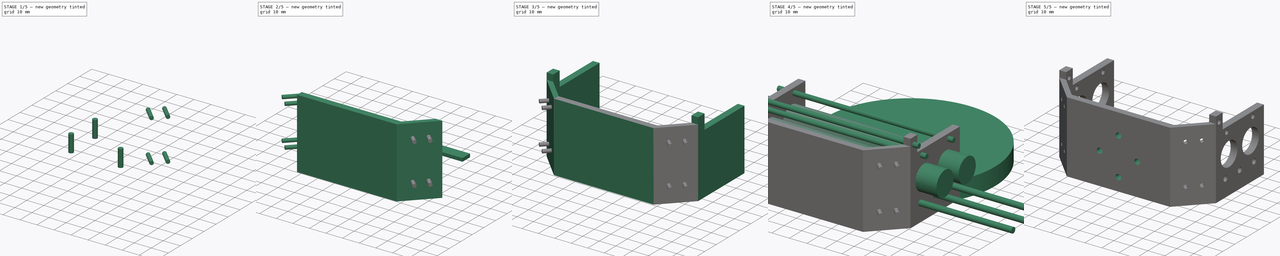
[diagram: build sequence overview — one tinted view per stage of 5, left to right]
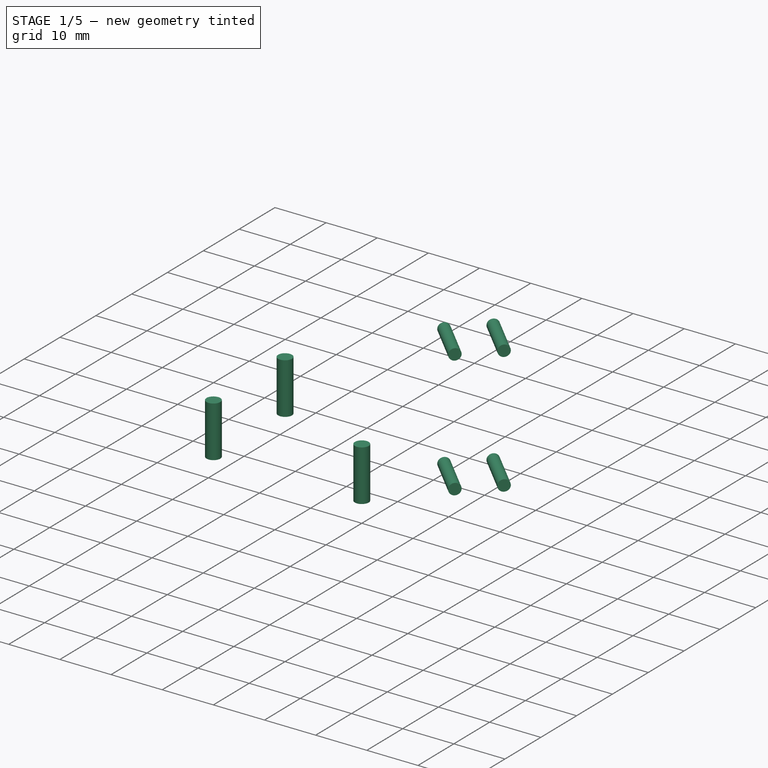
[diagram: stage 1 of 5 — iso view after this stage's code; geometry added in this stage tinted green]
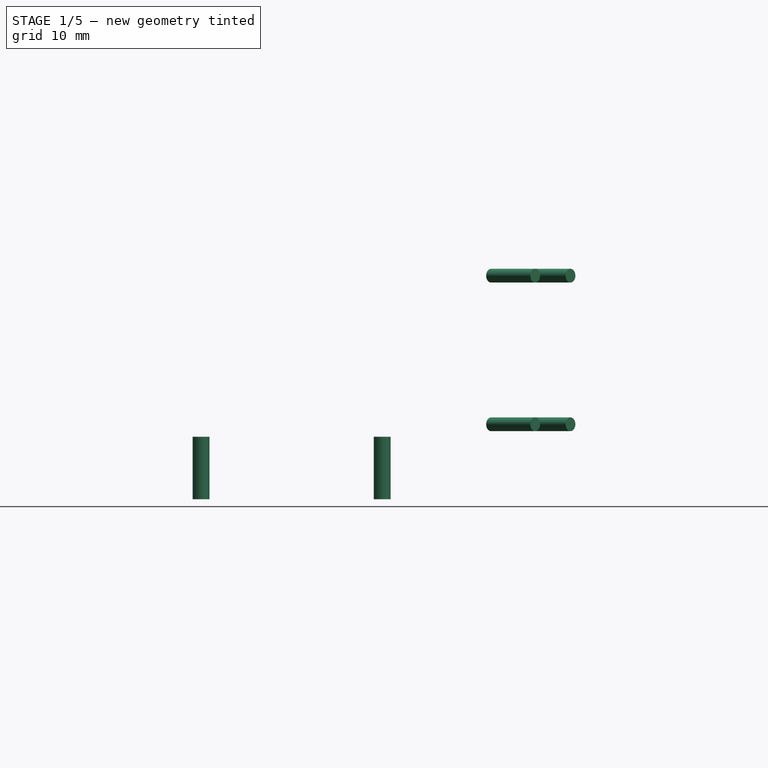
[diagram: stage 1 of 5 — front view after this stage's code; geometry added in this stage tinted green]
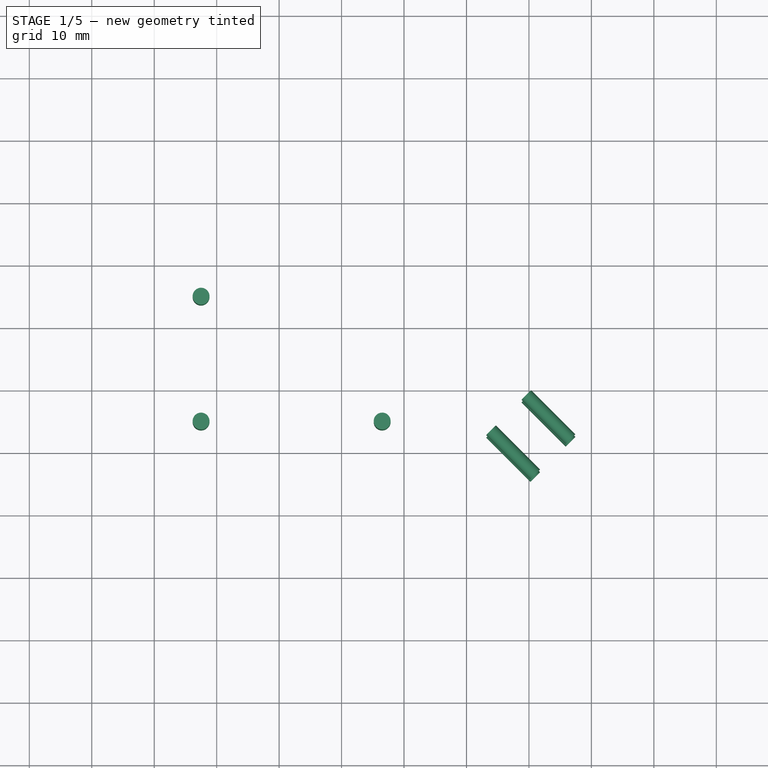
[diagram: stage 1 of 5 — top view after this stage's code; geometry added in this stage tinted green]
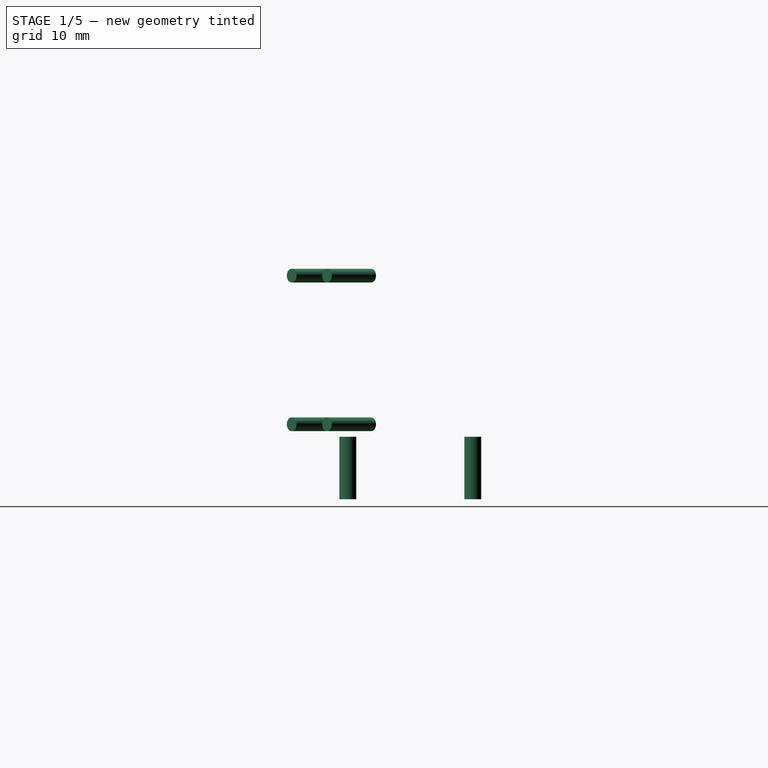
[diagram: stage 1 of 5 — right view after this stage's code; geometry added in this stage tinted green]
FCSTD DOCUMENT  (FreeCAD 0.16R6705 (Git))
Label: back_plate_shoulder
License: All rights reserved
LicenseURL: http://en.wikipedia.org/wiki/All_rights_reserved
objects: Part::Cylinder×21, Part::MultiFuse×11, Part::Box×8, Part::Cut×4, Part::Mirroring×3, Sketcher::SketchObject×2, Part::Extrusion×2
note: 51 computed .brp shape members not serialized (recipe doc carries the construction recipe); baked Part::Feature solids carry a one-line shape summary decoded from their .brp

FEATURE [Part::Cylinder] Cylinder020
  Angle = 360
  Height = 10
  Placement = pos=(56.5,-5,-2) rot=(0,0,1;0rad)
  Radius = 1.35
FEATURE [Part::Cylinder] Cylinder021
  Angle = 360
  Height = 10
  Placement = pos=(56.5,15,-2) rot=(0,0,1;0rad)
  Radius = 1.35
FEATURE [Part::Cylinder] Cylinder022
  Angle = 360
  Height = 10
  Placement = pos=(56.5,-5,-2) rot=(0,0,1;0rad)
  Radius = 1.35
FEATURE [Part::MultiFuse] Fusion015
  Placement = pos=(-29,0,0) rot=(0,0,1;0rad)
  Shapes = -> [Cylinder021,Cylinder022]
FEATURE [Part::Cylinder] Cylinder023
  Angle = 360
  Height = 10
  Placement = pos=(0,0,0) rot=(0,1,0;1.5708rad)
  Radius = 1.1
FEATURE [Part::Cylinder] Cylinder024
  Angle = 360
  Height = 10
  Placement = pos=(0,8,0) rot=(0,1,0;1.5708rad)
  Radius = 1.1
FEATURE [Part::Cylinder] Cylinder025
  Angle = 360
  Height = 10
  Placement = pos=(0,0,23.8) rot=(0,1,0;1.5708rad)
  Radius = 1.1
FEATURE [Part::Cylinder] Cylinder026
  Angle = 360
  Height = 10
  Placement = pos=(0,8,23.8) rot=(0,1,0;1.5708rad)
  Radius = 1.1
FEATURE [Part::MultiFuse] Fusion016
  Placement = pos=(3,-14,10) rot=(0,0,1;0.785398rad)
  Shapes = -> [Cylinder026,Cylinder023,Cylinder025,Cylinder024]
FEATURE [Part::Mirroring] Part__Mirroring002  label="Fusion016 (Mirror #3)"
  Base = (42,0,0)
  Normal = (1,0,0)
  Source = -> Fusion016
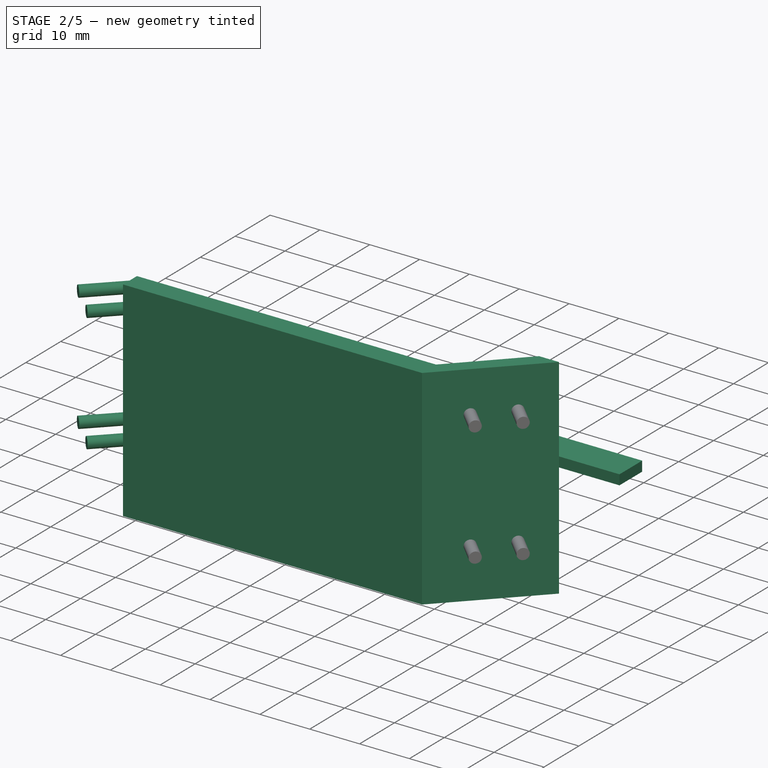
[diagram: stage 2 of 5 — iso view after this stage's code; geometry added in this stage tinted green]
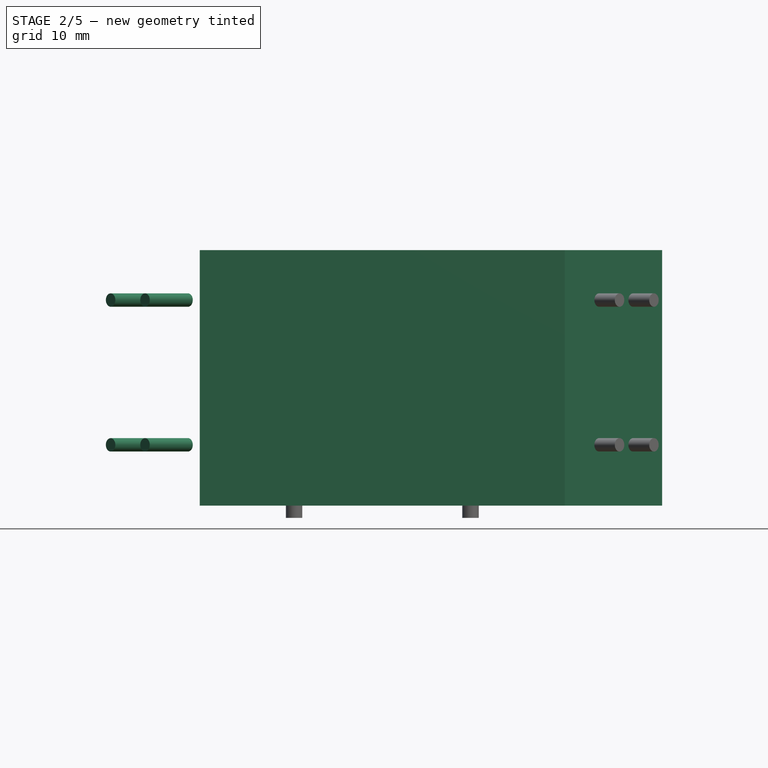
[diagram: stage 2 of 5 — front view after this stage's code; geometry added in this stage tinted green]
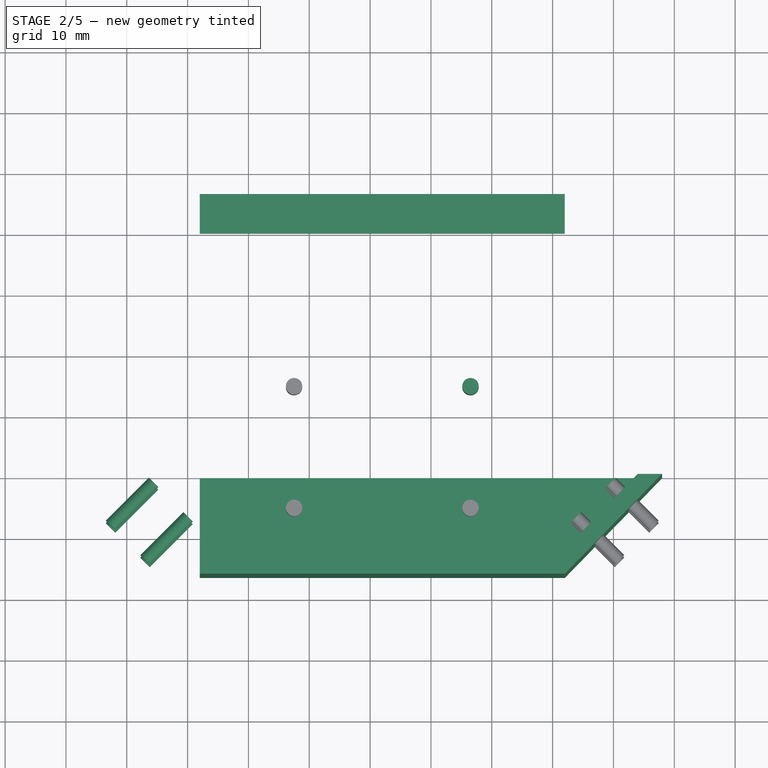
[diagram: stage 2 of 5 — top view after this stage's code; geometry added in this stage tinted green]
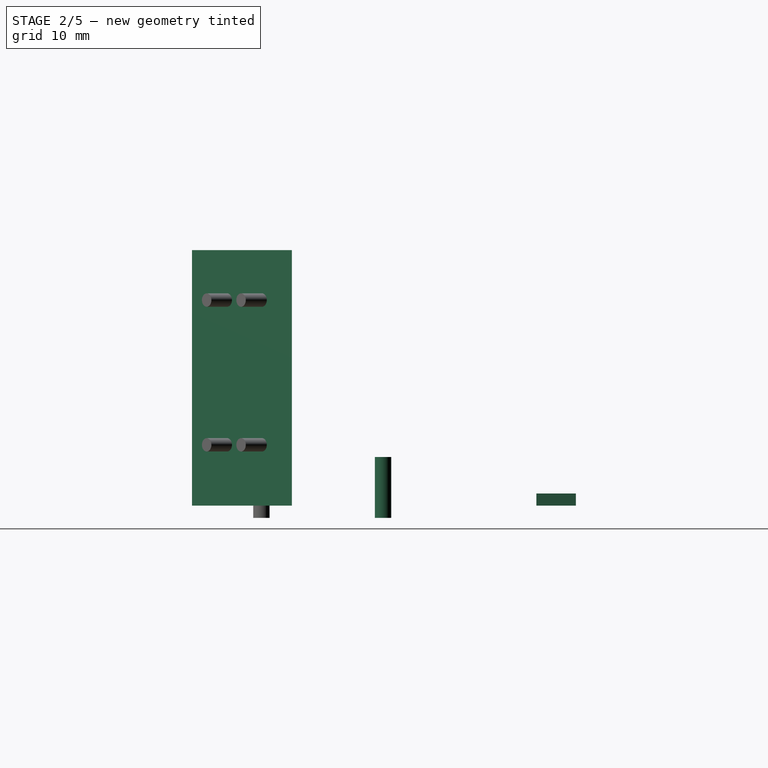
[diagram: stage 2 of 5 — right view after this stage's code; geometry added in this stage tinted green]
FEATURE [Part::Box] Box003  label="Cube003"
  Height = 2
  Length = 60
  Placement = pos=(12,-16.4,0) rot=(0,0,1;0rad)
  Width = 16.4
FEATURE [Part::Box] Box004  label="Cube004"
  Height = 42
  Length = 60
  Placement = pos=(12,-16.4,0) rot=(0,0,1;0rad)
  Width = 4
FEATURE [Sketcher::SketchObject] Sketch
  sketch-geometry (6):
    g0: GeomPoint [constr] X=12 Y=0 Z=0
    g1: GeomPoint [constr] X=12 Y=-16.4 Z=0
    g2: GeomPoint [constr] X=-4 Y=0 Z=0
    g3: LineSegment StartX=-4 StartY=0 StartZ=0 EndX=12 EndY=-16.4 EndZ=0
    g4: LineSegment StartX=12 StartY=0 StartZ=0 EndX=12 EndY=-16.4 EndZ=0
    g5: LineSegment StartX=-4 StartY=0 StartZ=0 EndX=12 EndY=0 EndZ=0
  constraints (14):
    c: DistanceX(g0) = 12
    c: DistanceY(g0) = 0
    c: DistanceY(g1) = -16.4
    c: DistanceX(g1) = 12
    c: DistanceY(g-1,g2) = 0
    c: DistanceX(g2) = -4
    c: Coincident(g3,g2)
    c: Coincident(g3,g1)
    c: Coincident(g4,g0)
    c: Coincident(g4,g1)
    c: DistanceX(g5) = -4
    c: DistanceX(g5) = 12
    c: DistanceY(g5) = 0
    c: DistanceY(g5) = 0
FEATURE [Part::Extrusion] Extrude
  Base = -> Sketch
  Dir = (0,0,2)
  Solid = true
FEATURE [Sketcher::SketchObject] Sketch001
  sketch-geometry (4):
    g0: LineSegment StartX=-4 StartY=0 StartZ=0 EndX=0 EndY=0 EndZ=0
    g1: LineSegment StartX=12 StartY=-16.4 StartZ=0 EndX=12 EndY=-12.4 EndZ=0
    g2: LineSegment StartX=-4 StartY=0 StartZ=0 EndX=12 EndY=-16.4 EndZ=0
    g3: LineSegment StartX=0 StartY=0 StartZ=0 EndX=12 EndY=-12.4 EndZ=0
  constraints (12):
    c: Horizontal(g0)
    c: DistanceX(g0) = -4
    c: DistanceX(g0) = 0
    c: DistanceY(g0) = 0
    c: DistanceX(g1) = 12
    c: DistanceX(g1) = 12
    c: DistanceY(g1) = -16.4
    c: DistanceY(g-1,g1) = -12.4
    c: Coincident(g2,g0)
    c: Coincident(g2,g1)
    c: Coincident(g3,g-1)
    c: Coincident(g3,g1)
FEATURE [Part::Extrusion] Extrude001
  Base = -> Sketch001
  Dir = (0,0,42)
  Solid = true
FEATURE [Part::MultiFuse] Fusion001
  Shapes = -> [Extrude001,Extrude]
FEATURE [Part::Mirroring] Part__Mirroring  label="Fusion001 (Mirror #1)"
  Base = (42,0,0)
  Normal = (1,0,0)
  Source = -> Fusion001
FEATURE [Part::Box] Box005  label="Cube005"
  Height = 2
  Length = 60
  Placement = pos=(12,40.2,0) rot=(0,0,1;0rad)
  Width = 6.5
FEATURE [Part::Cylinder] Cylinder019
  Angle = 360
  Height = 10
  Placement = pos=(56.5,15,-2) rot=(0,0,1;0rad)
  Radius = 1.35
FEATURE [Part::MultiFuse] Fusion014
  Shapes = -> [Cylinder019,Cylinder020]
FEATURE [Part::MultiFuse] Fusion017
  Shapes = -> [Fusion016,Fusion015,Fusion014]
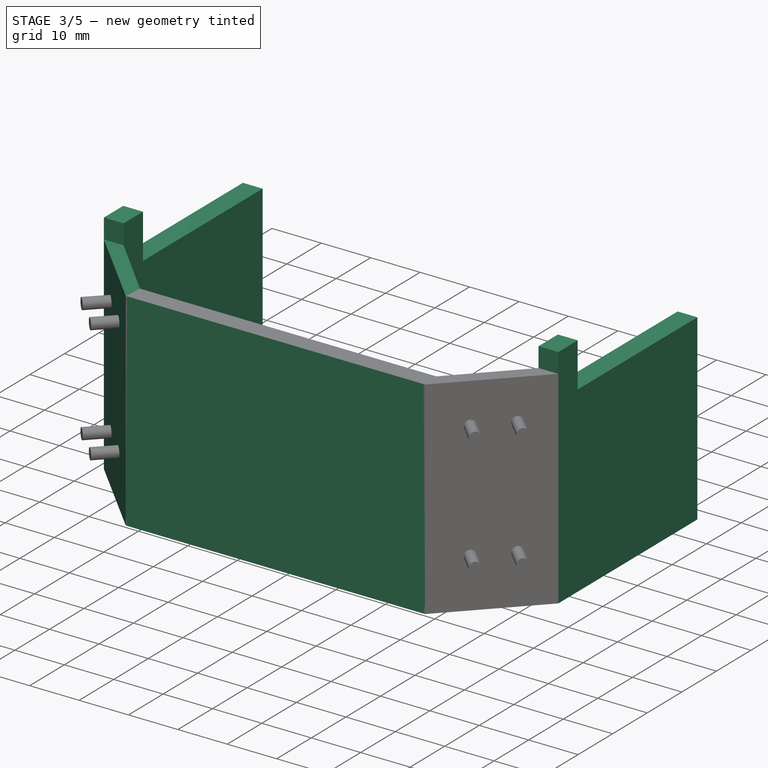
[diagram: stage 3 of 5 — iso view after this stage's code; geometry added in this stage tinted green]
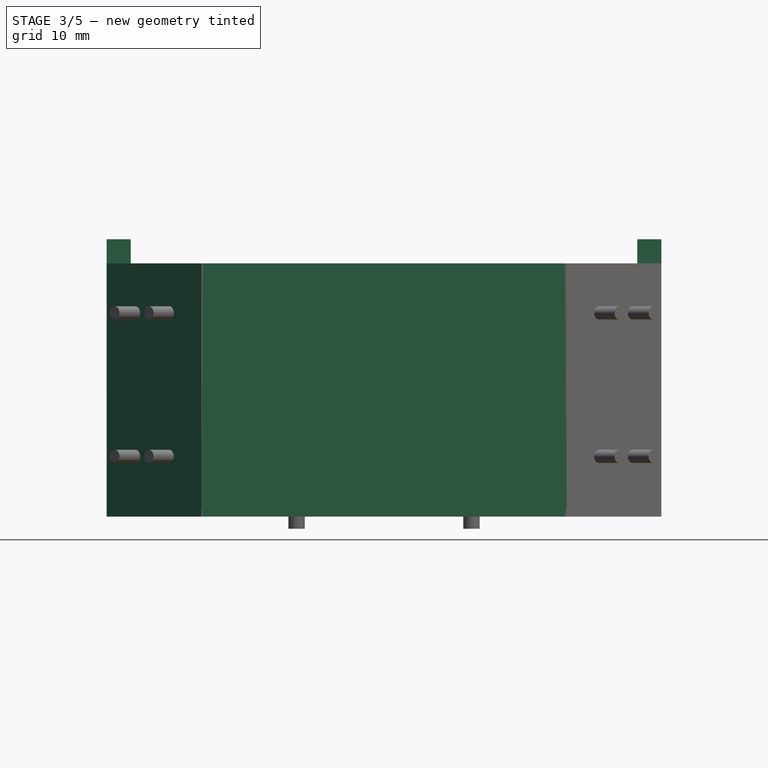
[diagram: stage 3 of 5 — front view after this stage's code; geometry added in this stage tinted green]
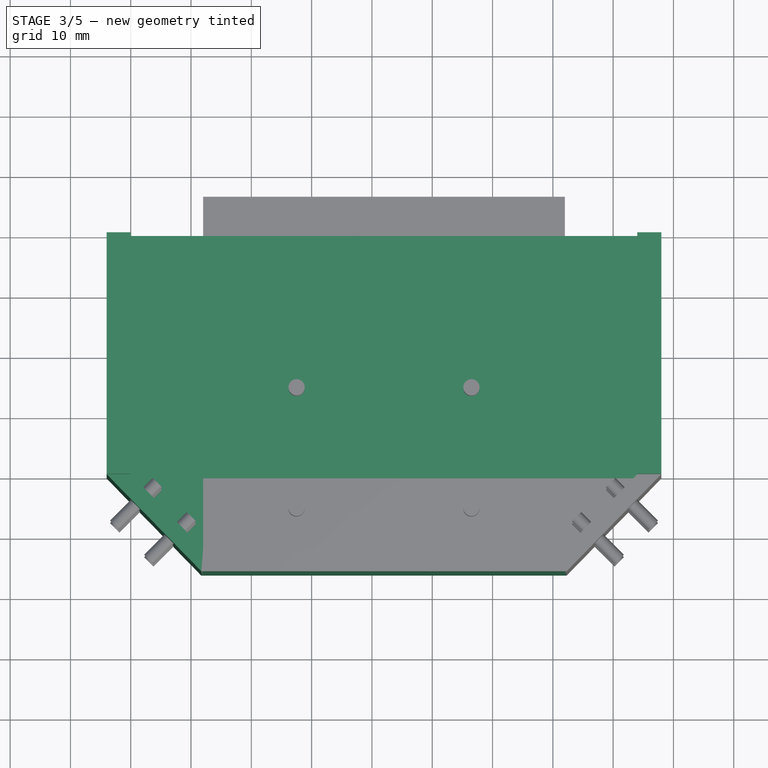
[diagram: stage 3 of 5 — top view after this stage's code; geometry added in this stage tinted green]
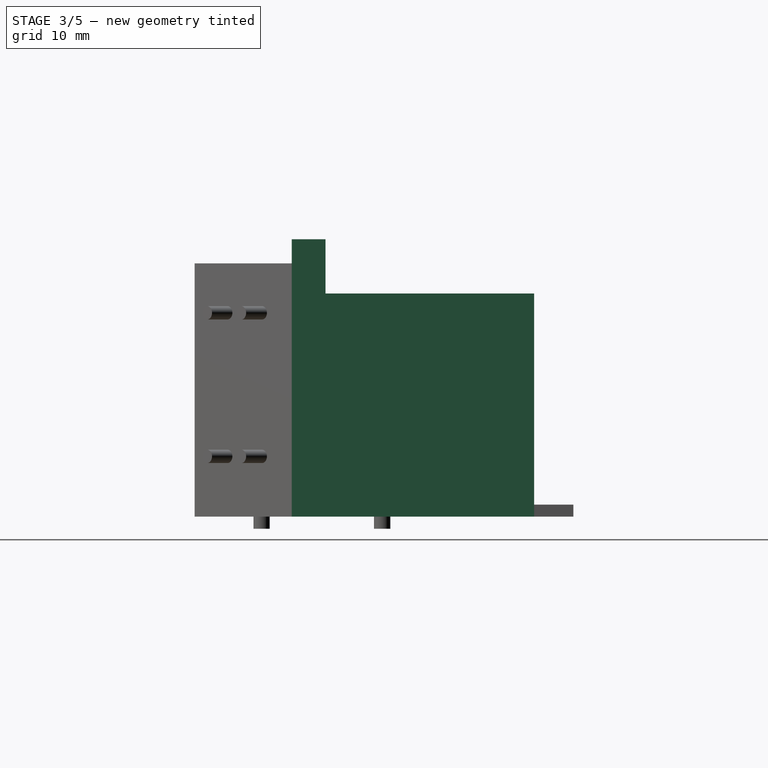
[diagram: stage 3 of 5 — right view after this stage's code; geometry added in this stage tinted green]
FEATURE [Part::Box] Box  label="Cube"
  Height = 2
  Length = 84
  Width = 40.2
FEATURE [Part::Box] Box001  label="Cube001"
  Height = 37
  Length = 4
  Placement = pos=(-4,0,0) rot=(0,0,1;0rad)
  Width = 40.2
FEATURE [Part::Box] Box002  label="Cube002"
  Height = 37
  Length = 4
  Placement = pos=(84,0,0) rot=(0,0,1;0rad)
  Width = 40.2
FEATURE [Part::Box] Box006  label="Cube006"
  Height = 9
  Length = 4
  Placement = pos=(-4,0,37) rot=(0,0,1;0rad)
  Width = 5.6
FEATURE [Part::Mirroring] Part__Mirroring001  label="Cube006 (Mirror #2)"
  Base = (42,0,0)
  Normal = (1,0,0)
  Source = -> Box006
FEATURE [Part::Box] Box007  label="Cube007"
  Height = 50
  Length = 150
  Placement = pos=(-23,-26.1,-4) rot=(0,0,1;0rad)
  Width = 10
FEATURE [Part::MultiFuse] Fusion
  Shapes = -> [Part__Mirroring,Fusion001,Box004,Box,Box001,Box002,Box003,Box005]
FEATURE [Part::MultiFuse] Fusion008
  Shapes = -> [Fusion,Part__Mirroring001,Box006]
FEATURE [Part::Cut] Cut
  Base = -> Fusion008
  Tool = -> Box007
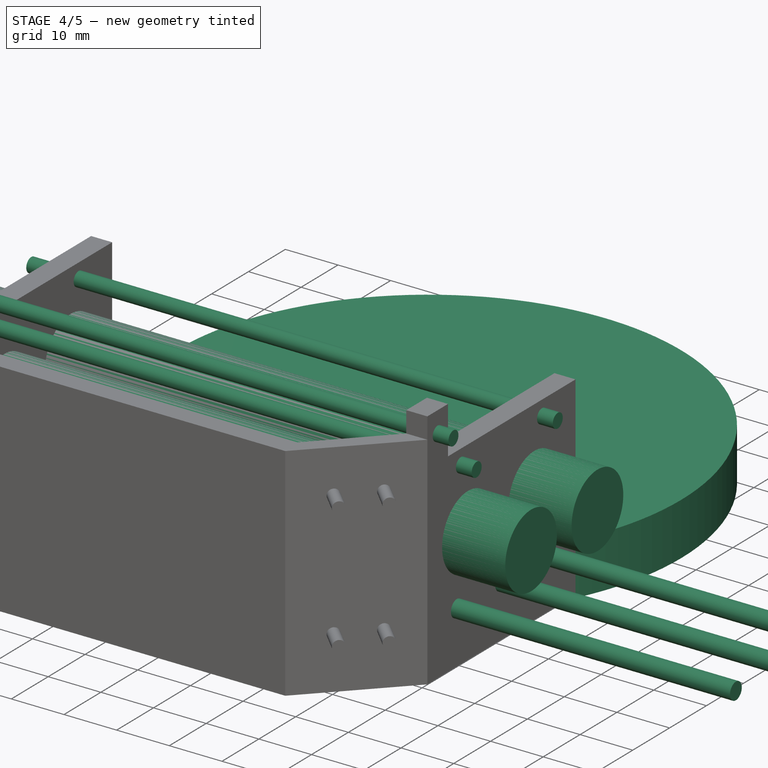
[diagram: stage 4 of 5 — iso view after this stage's code; geometry added in this stage tinted green]
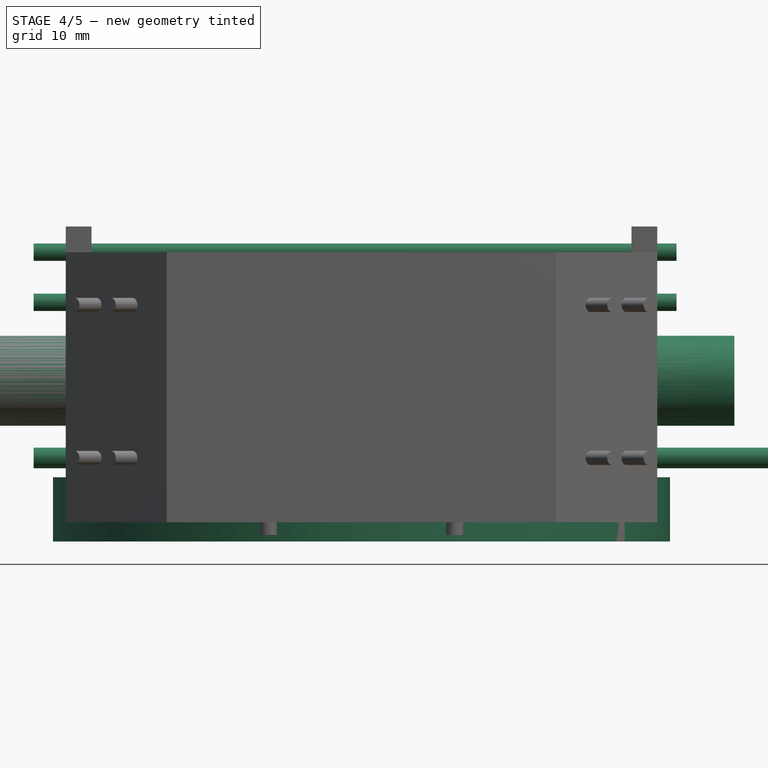
[diagram: stage 4 of 5 — front view after this stage's code; geometry added in this stage tinted green]
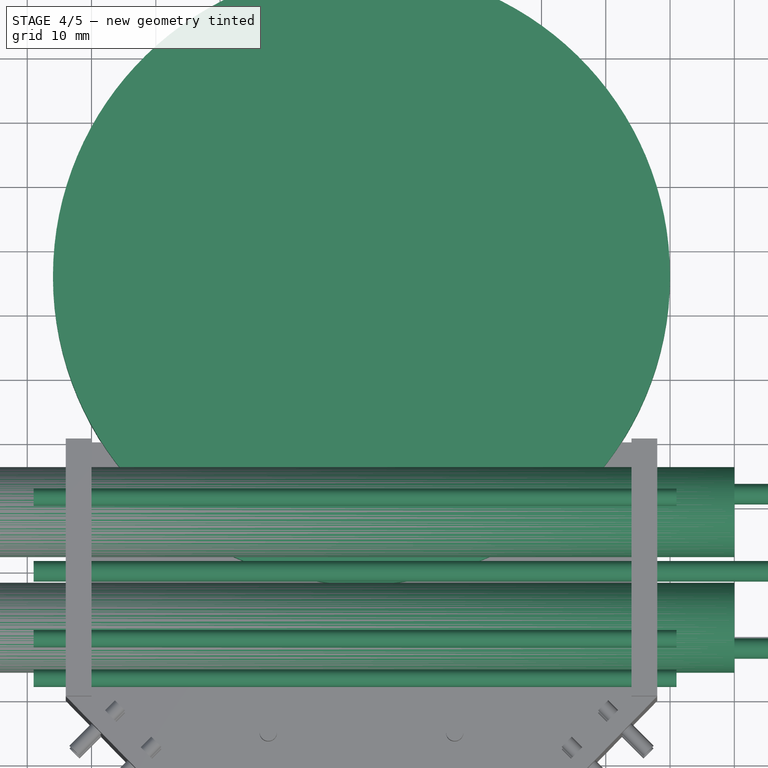
[diagram: stage 4 of 5 — top view after this stage's code; geometry added in this stage tinted green]
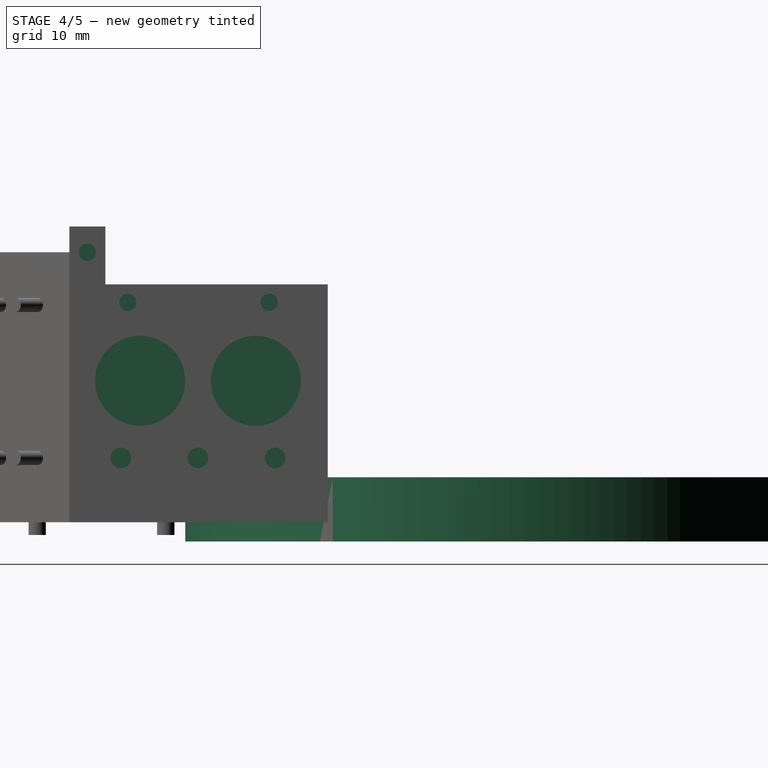
[diagram: stage 4 of 5 — right view after this stage's code; geometry added in this stage tinted green]
FEATURE [Part::Cylinder] Cylinder002
  Angle = 360
  Height = 10
  Placement = pos=(42,66,-3) rot=(0,0,1;0rad)
  Radius = 48
FEATURE [Part::Cylinder] Cylinder011
  Angle = 360
  Height = 150
  Placement = pos=(-50,29,22) rot=(0,1,0;1.5708rad)
  Radius = 7
FEATURE [Part::Cylinder] Cylinder012
  Angle = 360
  Height = 150
  Placement = pos=(-50,11,22) rot=(0,1,0;1.5708rad)
  Radius = 7
FEATURE [Part::Cylinder] Cylinder015
  Angle = 360
  Height = 100
  Placement = pos=(-9,2.8,42) rot=(0,1,0;1.5708rad)
  Radius = 1.35
FEATURE [Part::Cylinder] Cylinder016
  Angle = 360
  Height = 150
  Placement = pos=(0,0,0) rot=(1,0,0;1.5708rad)
  Radius = 1.6
FEATURE [Part::Cylinder] Cylinder017
  Angle = 360
  Height = 150
  Placement = pos=(12,0,0) rot=(1,0,0;1.5708rad)
  Radius = 1.6
FEATURE [Part::Cylinder] Cylinder018
  Angle = 360
  Height = 150
  Placement = pos=(-12,0,0) rot=(1,0,0;1.5708rad)
  Radius = 1.6
FEATURE [Part::MultiFuse] Fusion011
  Placement = pos=(-9,20,10) rot=(0,0,1;1.5708rad)
  Shapes = -> [Cylinder016,Cylinder017,Cylinder018]
FEATURE [Part::Cylinder] Cylinder001
  Angle = 360
  Height = 100
  Placement = pos=(-9,31.1,34.2) rot=(0,1,0;1.5708rad)
  Radius = 1.35
FEATURE [Part::Cylinder] Cylinder
  Angle = 360
  Height = 100
  Placement = pos=(-9,9.1,34.2) rot=(0,1,0;1.5708rad)
  Radius = 1.35
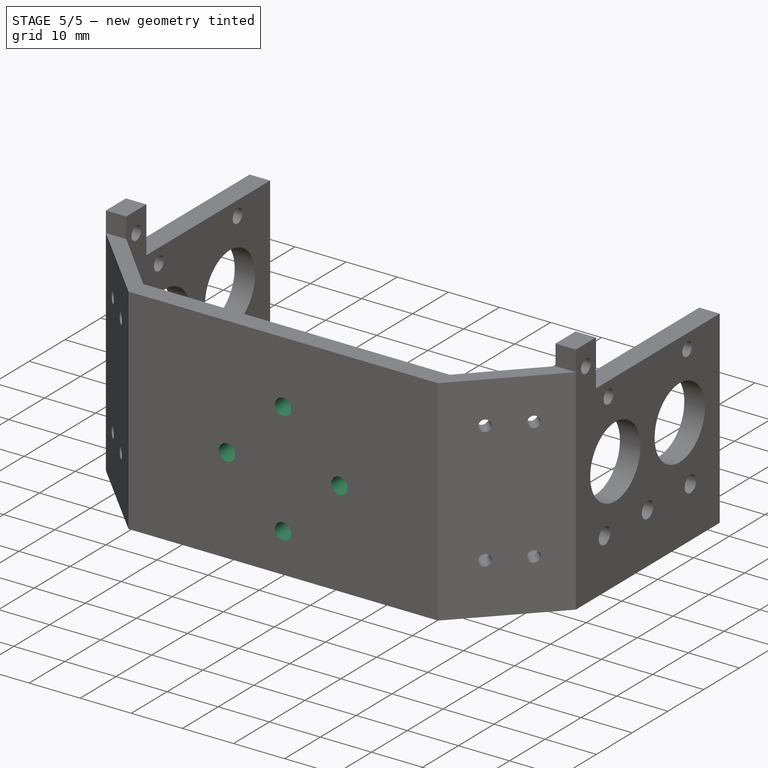
[diagram: stage 5 of 5 — iso view after this stage's code; geometry added in this stage tinted green]
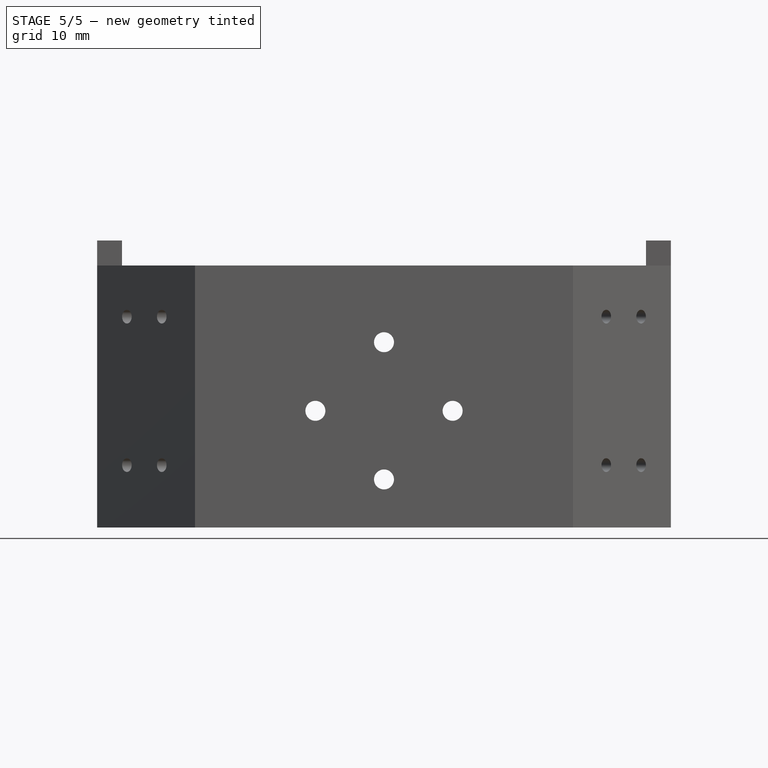
[diagram: stage 5 of 5 — front view after this stage's code; geometry added in this stage tinted green]
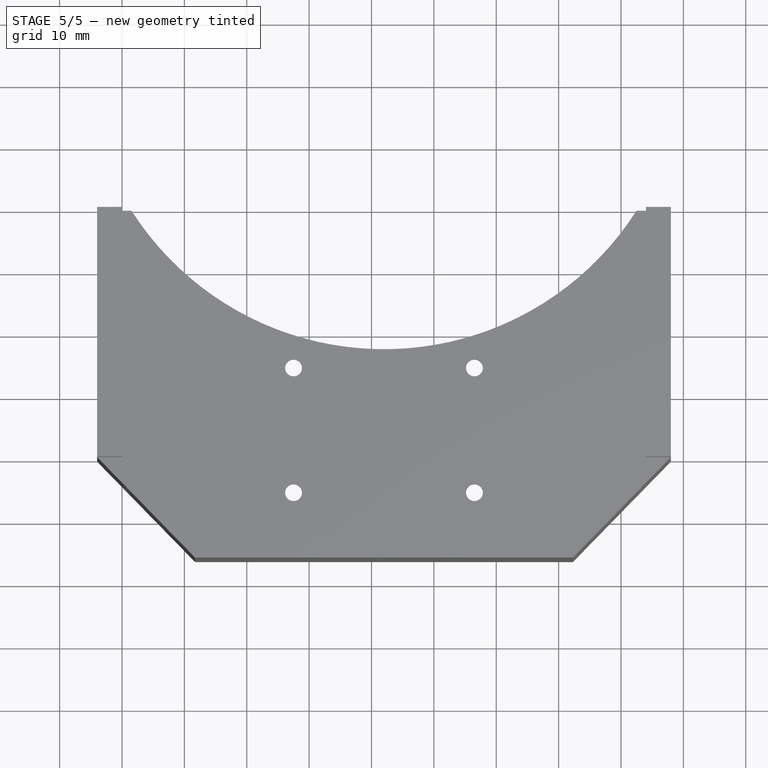
[diagram: stage 5 of 5 — top view after this stage's code; geometry added in this stage tinted green]
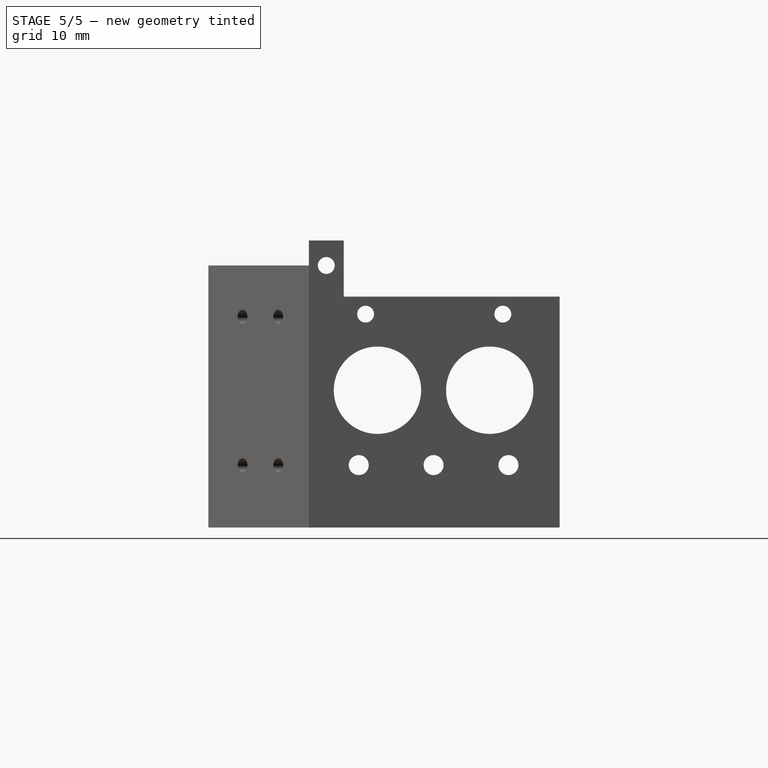
[diagram: stage 5 of 5 — right view after this stage's code; geometry added in this stage tinted green]
FEATURE [Part::Cylinder] Cylinder003
  Angle = 360
  Height = 10
  Placement = pos=(42,-10,32.7) rot=(1,0,0;1.5708rad)
  Radius = 1.6
FEATURE [Part::Cylinder] Cylinder004
  Angle = 360
  Height = 10
  Placement = pos=(42,-10,10.7) rot=(1,0,0;1.5708rad)
  Radius = 1.6
FEATURE [Part::Cylinder] Cylinder005
  Angle = 360
  Height = 10
  Placement = pos=(53,-10,21.7) rot=(1,0,0;1.5708rad)
  Radius = 1.6
FEATURE [Part::Cylinder] Cylinder006
  Angle = 360
  Height = 10
  Placement = pos=(31,-10,21.7) rot=(1,0,0;1.5708rad)
  Radius = 1.6
FEATURE [Part::MultiFuse] Fusion003
  Placement = pos=(0,0,-3) rot=(0,0,1;0rad)
  Shapes = -> [Cylinder003,Cylinder004,Cylinder005,Cylinder006]
FEATURE [Part::MultiFuse] Fusion012
  Shapes = -> [Cylinder012,Cylinder011,Cylinder,Cylinder001,Cylinder002,Cylinder015,Fusion011]
FEATURE [Part::MultiFuse] Fusion013
  Shapes = -> [Fusion003,Fusion012]
FEATURE [Part::Cut] Cut001
  Base = -> Cut
  Tool = -> Fusion013
FEATURE [Part::Cut] Cut002
  Base = -> Cut001
  Tool = -> Fusion017
FEATURE [Part::Cut] Cut003
  Base = -> Cut002
  Tool = -> Part__Mirroring002
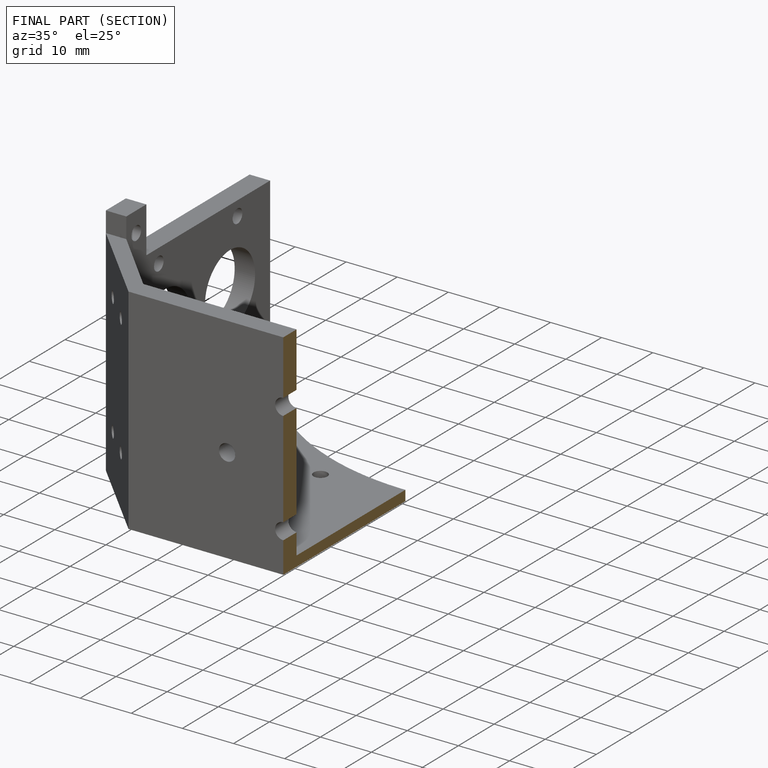
[diagram: finished part — half-section view (interior)]
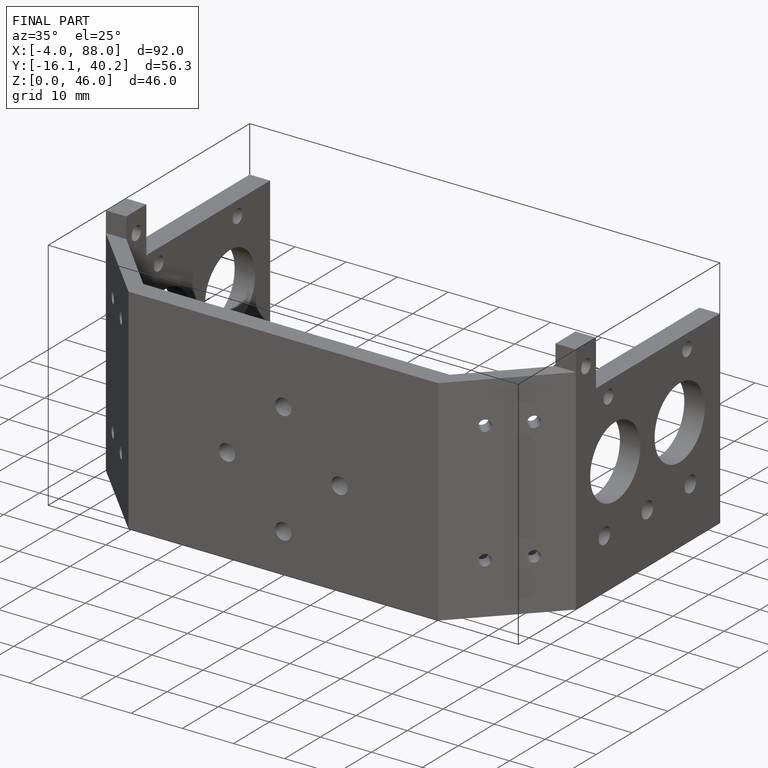
[diagram: finished part — iso view with bounding-box wireframe]
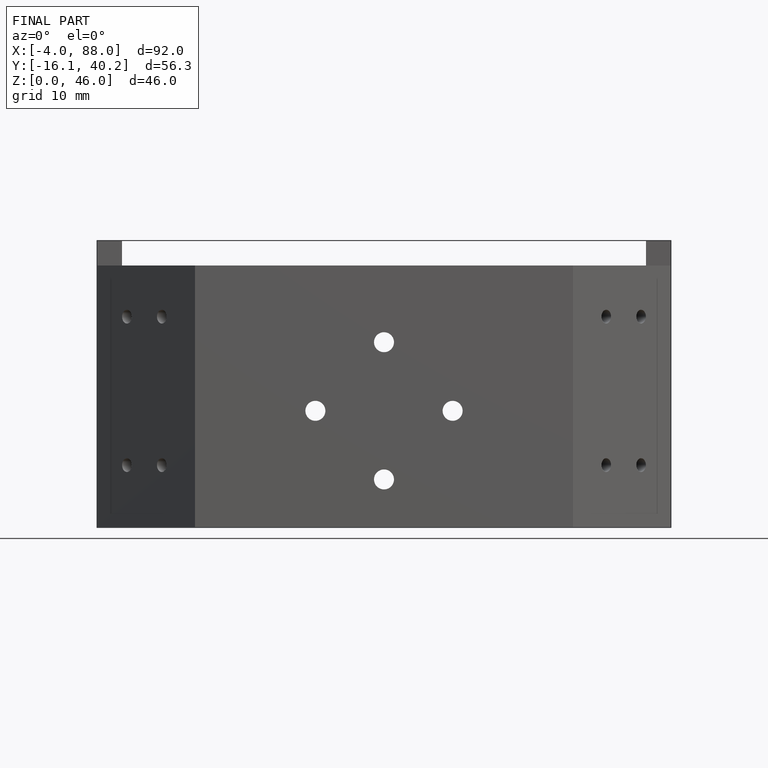
[diagram: finished part — front view with bounding-box wireframe]
